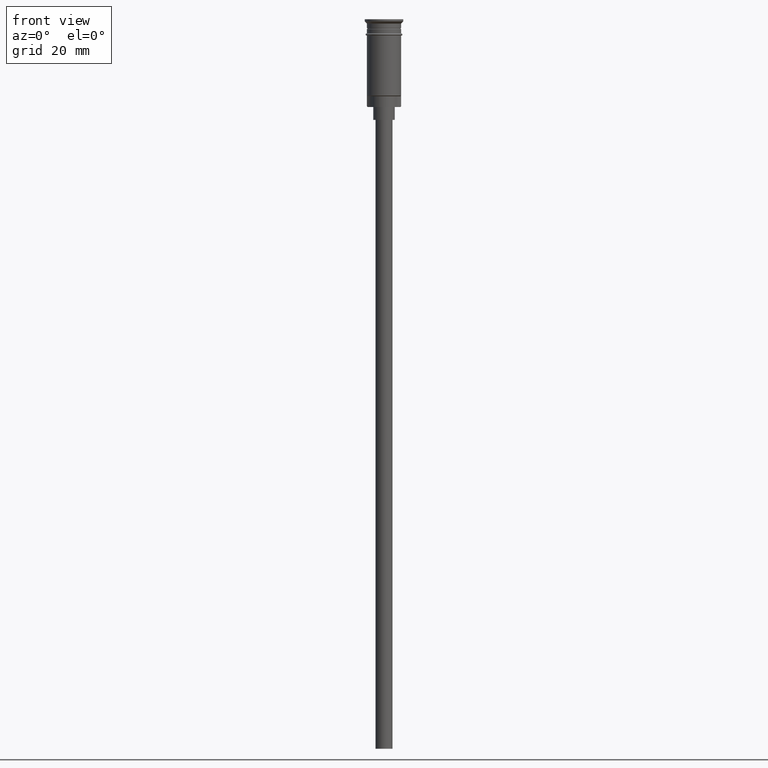
[diagram: clean part render]
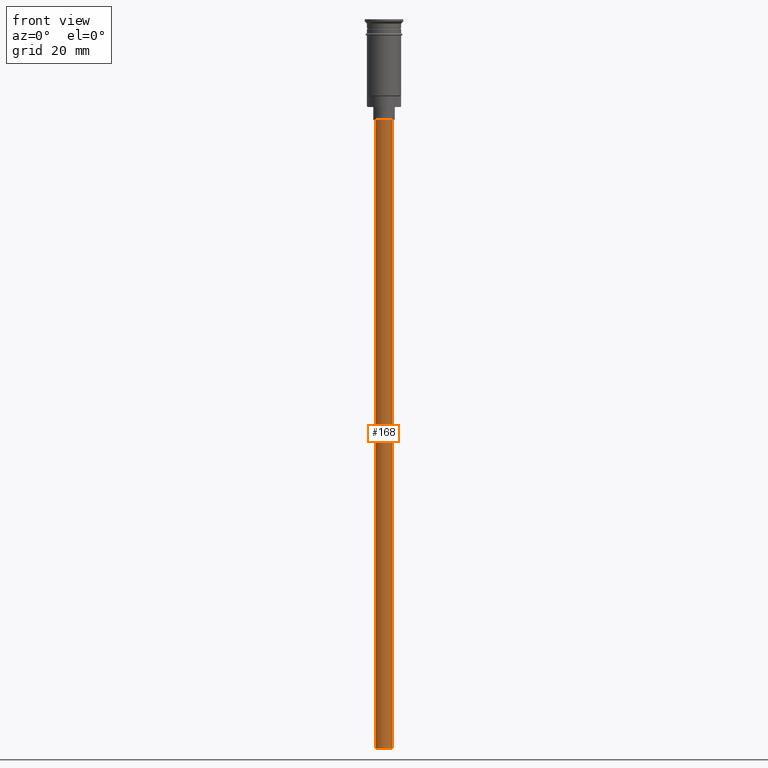
[diagram: same view with one face highlighted and labeled with its STEP entity id]
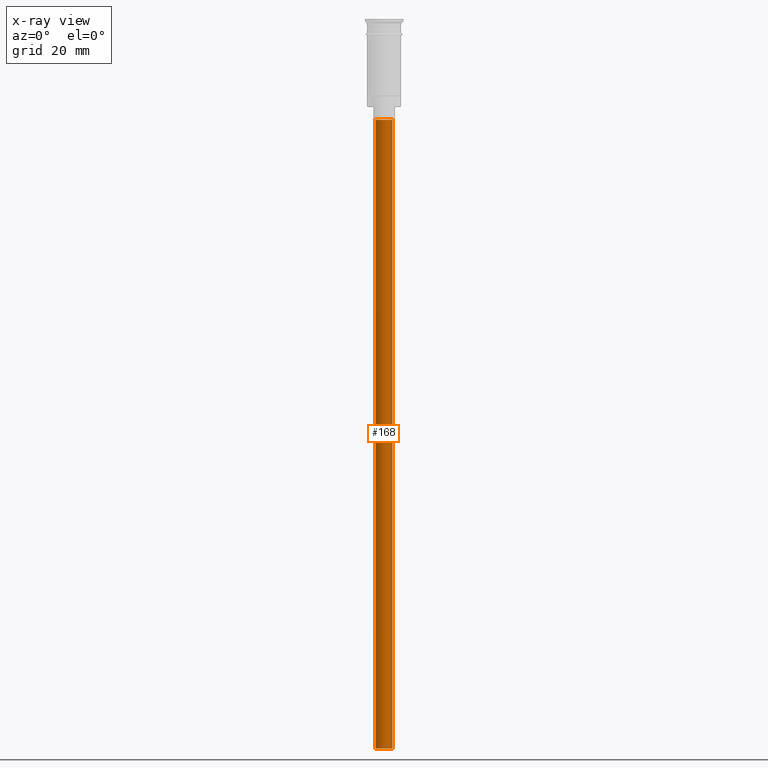
[diagram: x-ray of the same camera — body ghosted, the highlighted face saturated]
A machine part, front view. The second image highlights one B-rep face of the part: STEP entity #168.
The next image is the same camera in x-ray: the body ghosted, the highlighted face saturated — about 0% of this face is hidden behind the body in this view.
In plain terms, the highlighted cylindrical surface (edge-blend (fillet) strip) has radius 2 mm, axis along (-0, -0, 1).
Its self-contained STEP definition (entity closure, byte-faithful):
#7 = LINE ( 'NONE', #757, #531 ) ;
#11 = CARTESIAN_POINT ( 'NONE',  ( 0.000000000000000000, 0.000000000000000000, -23.49999999999999645 ) ) ;
#84 = DIRECTION ( 'NONE',  ( 0.000000000000000000, 0.000000000000000000, -1.000000000000000000 ) ) ;
#136 = EDGE_CURVE ( 'NONE', #1194, #1551, #1447, .T. ) ;
#143 = DIRECTION ( 'NONE',  ( 0.000000000000000000, 0.000000000000000000, -1.000000000000000000 ) ) ;
#168 = ADVANCED_FACE ( 'NONE', ( #1008 ), #622, .T. ) ;
#195 = ORIENTED_EDGE ( 'NONE', *, *, #136, .T. ) ;
#278 = CARTESIAN_POINT ( 'NONE',  ( 0.000000000000000000, 0.000000000000000000, -170.4999999999999716 ) ) ;
#283 = CARTESIAN_POINT ( 'NONE',  ( 2.000000000000000000, 0.000000000000000000, -23.49999999999999645 ) ) ;
#304 = VERTEX_POINT ( 'NONE', #530 ) ;
#426 = AXIS2_PLACEMENT_3D ( 'NONE', #11, #143, #512 ) ;
#512 = DIRECTION ( 'NONE',  ( -1.000000000000000000, 0.000000000000000000, 0.000000000000000000 ) ) ;
#530 = CARTESIAN_POINT ( 'NONE',  ( 2.000000000000000000, 0.000000000000000000, -170.4999999999999716 ) ) ;
#531 = VECTOR ( 'NONE', #887, 1000.000000000000000 ) ;
#622 = CYLINDRICAL_SURFACE ( 'NONE', #1258, 2.000000000000000000 ) ;
#741 = VECTOR ( 'NONE', #1381, 1000.000000000000000 ) ;
#757 = CARTESIAN_POINT ( 'NONE',  ( -2.000000000000000000, 2.449293598294706414E-16, -170.4999999999999716 ) ) ;
#762 = AXIS2_PLACEMENT_3D ( 'NONE', #1561, #84, #1318 ) ;
#887 = DIRECTION ( 'NONE',  ( -0.000000000000000000, -0.000000000000000000, 1.000000000000000000 ) ) ;
#902 = EDGE_CURVE ( 'NONE', #304, #965, #1262, .T. ) ;
#965 = VERTEX_POINT ( 'NONE', #1432 ) ;
#1008 = FACE_OUTER_BOUND ( 'NONE', #1302, .T. ) ;
#1091 = ORIENTED_EDGE ( 'NONE', *, *, #1444, .F. ) ;
#1126 = CARTESIAN_POINT ( 'NONE',  ( -2.000000000000000000, 2.449293598294706414E-16, -23.49999999999999645 ) ) ;
#1194 = VERTEX_POINT ( 'NONE', #283 ) ;
#1254 = CARTESIAN_POINT ( 'NONE',  ( 2.000000000000000000, 0.000000000000000000, -170.4999999999999716 ) ) ;
#1258 = AXIS2_PLACEMENT_3D ( 'NONE', #278, #1503, #1268 ) ;
#1262 = CIRCLE ( 'NONE', #762, 2.000000000000000000 ) ;
#1268 = DIRECTION ( 'NONE',  ( 1.000000000000000000, 0.000000000000000000, 0.000000000000000000 ) ) ;
#1302 = EDGE_LOOP ( 'NONE', ( #1091, #1594, #1376, #195 ) ) ;
#1318 = DIRECTION ( 'NONE',  ( -1.000000000000000000, 0.000000000000000000, 0.000000000000000000 ) ) ;
#1376 = ORIENTED_EDGE ( 'NONE', *, *, #1489, .T. ) ;
#1381 = DIRECTION ( 'NONE',  ( -0.000000000000000000, -0.000000000000000000, 1.000000000000000000 ) ) ;
#1432 = CARTESIAN_POINT ( 'NONE',  ( -2.000000000000000000, 2.449293598294706414E-16, -170.4999999999999716 ) ) ;
#1444 = EDGE_CURVE ( 'NONE', #965, #1551, #7, .T. ) ;
#1447 = CIRCLE ( 'NONE', #426, 2.000000000000000000 ) ;
#1489 = EDGE_CURVE ( 'NONE', #304, #1194, #1496, .T. ) ;
#1496 = LINE ( 'NONE', #1254, #741 ) ;
#1503 = DIRECTION ( 'NONE',  ( -0.000000000000000000, -0.000000000000000000, 1.000000000000000000 ) ) ;
#1551 = VERTEX_POINT ( 'NONE', #1126 ) ;
#1561 = CARTESIAN_POINT ( 'NONE',  ( 0.000000000000000000, 0.000000000000000000, -170.4999999999999716 ) ) ;
#1594 = ORIENTED_EDGE ( 'NONE', *, *, #902, .F. ) ;